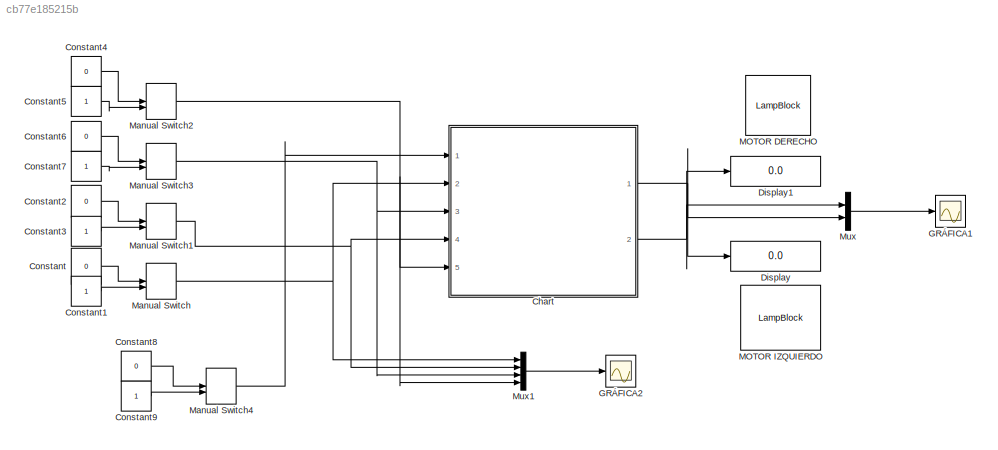
MODEL slx_cb77e185215b
KIND model
CONFIG AbsTol = auto
CONFIG EnableMultiTasking = off
CONFIG FixedStep = auto
CONFIG MaxStep = auto
CONFIG MinStep = auto
CONFIG RelTol = 1e-3
CONFIG SampleTimeConstraint = Unconstrained
CONFIG Solver = VariableStepAuto
CONFIG SolverName = VariableStepAuto
CONFIG StartTime = 0.0
CONFIG StopTime = inf
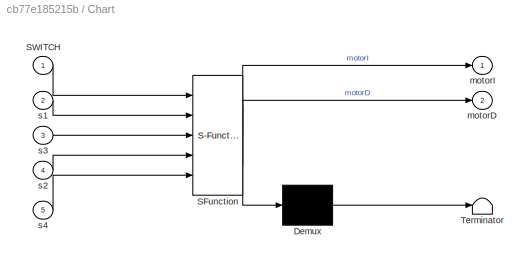
BLOCK [SubSystem] Chart
  ErrorFcn = Stateflow.Translate.translate
  PermitHierarchicalResolution = ExplicitOnly
  PortSchema = {"entries":[{"content":{"sides":[{"content":{"connectorIds":["In1","In5","In3","In4","In2"]},"type":"ConnectorPlacement.EquallySpacedRectSide","uuid":"c48cc22e-73b5-437f-8993-9fe880df77c7"},{"content":{"connectorIds":["Out2","Out1"],"side":"RIGHT"},"type":"ConnectorPlacement.EquallySpacedRectSide","uuid":"c8cbb8df-0516-4d71-ab05-0b1bf0b46515"},{"content":{"connectorIds":[],"side":"TOP"},"type":"Co...<+273ch>
  Ports = [5, 2]
  RequestExecContextInheritance = off
  SFBlockType = Chart
  TreatAsAtomicUnit = on
BLOCK [Demux] Chart/ Demux 
  Outputs = 1
  Ports = [1, 1]
BLOCK [S-Function] Chart/ SFunction 
  EnableBusSupport = on
  FunctionName = sf_sfun
  PortCounts = [5 3]
  Ports = [5, 3]
  SFcnIsStateOwnerBlock = off
  SFunctionDeploymentMode = off
  Tag = Stateflow S-Function 3
BLOCK [Terminator] Chart/ Terminator 
BLOCK [Inport] Chart/SWITCH
BLOCK [Outport] Chart/motorD
  Port = 2
BLOCK [Outport] Chart/motorI
BLOCK [Inport] Chart/s1
  Port = 2
BLOCK [Inport] Chart/s2
  Port = 4
BLOCK [Inport] Chart/s3
  Port = 3
BLOCK [Inport] Chart/s4
  Port = 5
BLOCK [Constant] Constant
  Value = 0
BLOCK [Constant] Constant1
BLOCK [Constant] Constant2
  Value = 0
BLOCK [Constant] Constant3
BLOCK [Constant] Constant4
  Value = 0
BLOCK [Constant] Constant5
BLOCK [Constant] Constant6
  Value = 0
BLOCK [Constant] Constant7
BLOCK [Constant] Constant8
  Value = 0
BLOCK [Constant] Constant9
BLOCK [Display] Display
  Decimation = 1
  Ports = [1]
BLOCK [Display] Display1
  Decimation = 1
  Ports = [1]
BLOCK [Scope] GRÁFICA1
  Floating = off
  NumInputPorts = 1
  Ports = [1]
  ScopeSpecificationString = Simulink.scopes.TimeScopeBlockCfg('CurrentConfiguration', extmgr.ConfigurationSet(extmgr.Configuration('Core','General UI',true),extmgr.Configuration('Core','Source UI',true),extmgr.Configuration('Sources','WiredSimulink',true),extmgr.Configuration('Visuals','Time Domain',true,'SerializedDisplays',{struct('MinYLimReal','-31.875','MaxYLimReal','286.875','YLabelReal','','MinYLimMag','0.00000','MaxYL...<+1445ch>
BLOCK [Scope] GRÁFICA2
  Floating = off
  NumInputPorts = 1
  Ports = [1]
  ScopeSpecificationString = Simulink.scopes.TimeScopeBlockCfg('CurrentConfiguration', extmgr.ConfigurationSet(extmgr.Configuration('Core','General UI',true),extmgr.Configuration('Core','Source UI',true),extmgr.Configuration('Sources','WiredSimulink',true,'DataLoggingVariableName','ScopeData1'),extmgr.Configuration('Visuals','Time Domain',true,'SerializedDisplays',{struct('MinYLimReal','-0.125','MaxYLimReal','1.125','YLabelRe...<+1577ch>
BLOCK [LampBlock] MOTOR DERECHO
BLOCK [LampBlock] MOTOR IZQUIERDO
BLOCK [ManualSwitch] Manual Switch
  CurrentSetting = 0
BLOCK [ManualSwitch] Manual Switch1
BLOCK [ManualSwitch] Manual Switch2
  CurrentSetting = 0
BLOCK [ManualSwitch] Manual Switch3
BLOCK [ManualSwitch] Manual Switch4
BLOCK [Mux] Mux
  DisplayOption = bar
  Inputs = 2
  Ports = [2, 1]
BLOCK [Mux] Mux1
  DisplayOption = bar
  Ports = [4, 1]
NET Chart:1 -> Display:1, Mux:2
NET Chart:2 -> Display1:1, Mux:1
LINE Constant1:1 -> Manual Switch:2
LINE Constant2:1 -> Manual Switch1:1
LINE Constant3:1 -> Manual Switch1:2
LINE Constant4:1 -> Manual Switch2:1
LINE Constant5:1 -> Manual Switch2:2
LINE Constant6:1 -> Manual Switch3:1
LINE Constant7:1 -> Manual Switch3:2
LINE Constant8:1 -> Manual Switch4:1
LINE Constant9:1 -> Manual Switch4:2
LINE Constant:1 -> Manual Switch:1
NET Manual Switch1:1 -> Chart:4, Mux1:2
NET Manual Switch2:1 -> Chart:5, Mux1:4
NET Manual Switch3:1 -> Chart:3, Mux1:3
LINE Manual Switch4:1 -> Chart:1
NET Manual Switch:1 -> Chart:2, Mux1:1
LINE Mux1:1 -> GRÁFICA2:1
LINE Mux:1 -> GRÁFICA1:1
note: NET lines group one-source signal fan-out (src -> all destinations, sorted); 1:1 wires keep LINE
CHART Chart states=13 transitions=39
  STATE_LABEL 'ON\n\n'
  STATE_LABEL 'ESTADO_AVANCE\n\n'
  STATE_LABEL 'ESTADO1AVANCE1\n\nentry: motorI = 255;\nentry: motorD = 200;\n'
  STATE_LABEL 'ESTADO1AVANCE2\n\nentry: motorI = 255;\nentry: motorD = 114;\n'
  STATE_LABEL 'ESTADO1AVANCE3\n\nentry: motorI = 255;\nentry: motorD = 255;\n'
  STATE_LABEL 'ESTADO1AVANCE4\n\nentry: motorI = 114;\nentry: motorD = 255;\n'
  STATE_LABEL 'ESTADO1AVANCE5\n\nentry: motorI = 200;\nentry: motorD = 255;\n'
  STATE_LABEL '[(s1 == 1)&&(s2 == 1)&&(s3 == 0)&&(s4 == 0)]'
  STATE_LABEL '[(s1 == 0)&&(s2 == 1)&&(s3 == 1)&&(s4 == 1)]'
  STATE_LABEL '[(s1 == 0)&&(s2 == 0)&&(s3 == 1)&&(s4 == 1)]'
  STATE_LABEL '[(s1 == 1)&&(s2 == 1)&&(s3 == 1)&&(s4 == 0)]'
  STATE_LABEL '[(s1 == 1)&&(s2 == 1)&&(s3 == 0)&&(s4 == 0)]'
  STATE_LABEL '[(s1 == 1)&&(s2 == 1)&&(s3 == 1)&&(s4 == 0)]'
  STATE_LABEL '[(s1 == 1)&&(s2 == 0)&&(s3 == 0)&&(s4 == 1)]'
  STATE_LABEL '[(s1 == 1)&&(s2 == 0)&&(s3 == 0)&&(s4 == 1)]'
  STATE_LABEL '[(s1 == 1)&&(s2 == 1)&&(s3 == 1)&&(s4 == 0)]'
  STATE_LABEL '[(s1 == 0)&&(s2 == 1)&&(s3 == 1)&&(s4 == 1)]'
  STATE_LABEL '[(s1 == 1)&&(s2 == 1)&&(s3 == 1)&&(s4 == 0)]'
  STATE_LABEL '[(s1 == 0)&&(s2 == 0)&&(s3 == 1)&&(s4 == 1)]'
  STATE_LABEL '[(s1 == 1)&&(s2 == 1)&&(s3 == 0)&&(s4 == 0)]'
  STATE_LABEL '[(s1 == 1)&&(s2 == 1)&&(s3 == 0)&&(s4 == 0)]'
  STATE_LABEL '[(s1 == 1)&&(s2 == 0)&&(s3 == 0)&&(s4 == 1)]'
  STATE_LABEL '[(s1 == 1)&&(s2 == 0)&&(s3 == 0)&&(s4 == 1)]'
  STATE_LABEL '[(s1 == 0)&&(s2 == 0)&&(s3 == 1)&&(s4 == 1)]'
  STATE_LABEL '[(s1 == 0)&&(s2 == 1)&&(s3 == 1)&&(s4 == 1)]'
  STATE_LABEL '[(s1 == 0)&&(s2 == 1)&&(s3 == 1)&&(s4 == 1)]'
  STATE_LABEL '[(s1 == 0)&&(s2 == 0)&&(s3 == 1)&&(s4 == 1)]'
  STATE_LABEL 'ESTADO_RETROCESO\n\nentry: motorI = 255;\nentry: motorD = 255;'
  STATE_LABEL 'ESTADO_GIRO\n\n'
  STATE_LABEL 'IZQUIERDA\n\nentry: motorI = 0;\nentry: motorD = 255;'
  STATE_LABEL 'DERECHA\n\nentry: motorI = 255;\nentry: motorD = 0;'
  STATE_LABEL '[(s1 == 1)&&(s2 == 0)&&(s3 == 0)&&(s4 == 0)]'
  STATE_LABEL '[(s1 == 0)&&(s2 == 0)&&(s3 == 0)&&(s4 == 1)]'
  STATE_LABEL 'ESTADO_FIN\n\nentry: motorI = 0;\nentry: motorD = 0;\n'
  STATE_LABEL '[((s1 == 0)&&(s2 == 0)&&(s3 == 0)&&(s4 == 1))||((s1 == 1)&&(s2 == 0)&&(s3 == 0)&&(s4 == 0))]'
  STATE_LABEL '[((s1 == 1)&&(s2 == 0)&&(s3 == 0)&&(s4 == 1))||((s1 == 1)&&(s2 == 1)&&(s3 == 1)&&(s4 == 0))||((s1 == 1)&&(s2 == 1)&&(s3 == 0)&&(s4 == 0))||((s1 == 0)&&(s2 == 0)&&(s3 == 1)&&(s4 == 1))||((s1 == 0)&&(s2 == 1)&&(s3 == 1)&&(s4 == 1))]'
  STATE_LABEL '[(s1 == 0)&&(s2 == 0)&&(s3 == 0)&&(s4 == 0)]'
  STATE_LABEL '[((s1 == 1)&&(s2 == 1)&&(s3 == 1)&&(s4 == 1))]'
  STATE_LABEL '[((s1 == 1)&&(s2 == 0)&&(s3 == 0)&&(s4 == 1))||((s1 == 1)&&(s2 == 1)&&(s3 == 1)&&(s4 == 0))||((s1 == 1)&&(s2 == 1)&&(s3 == 0)&&(s4 == 0))||((s1 == 0)&&(s2 == 0)&&(s3 == 1)&&(s4 == 1))||((s1 == 0)&&(s2 == 1)&&(s3 == 1)&&(s4 == 1))]'
  STATE_LABEL '[((s1 == 1)&&(s2 == 1)&&(s3 == 1)&&(s4 == 1))]'
CHART  states=0 transitions=0
